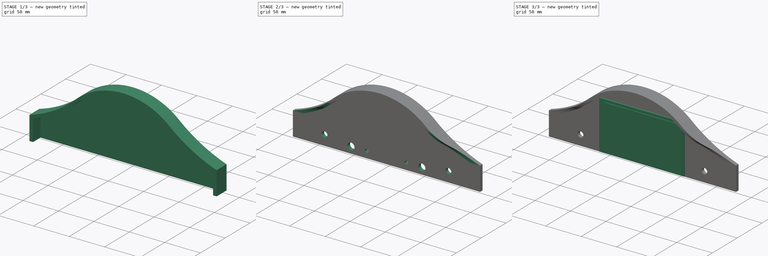
[diagram: build sequence overview — one tinted view per stage of 3, left to right]
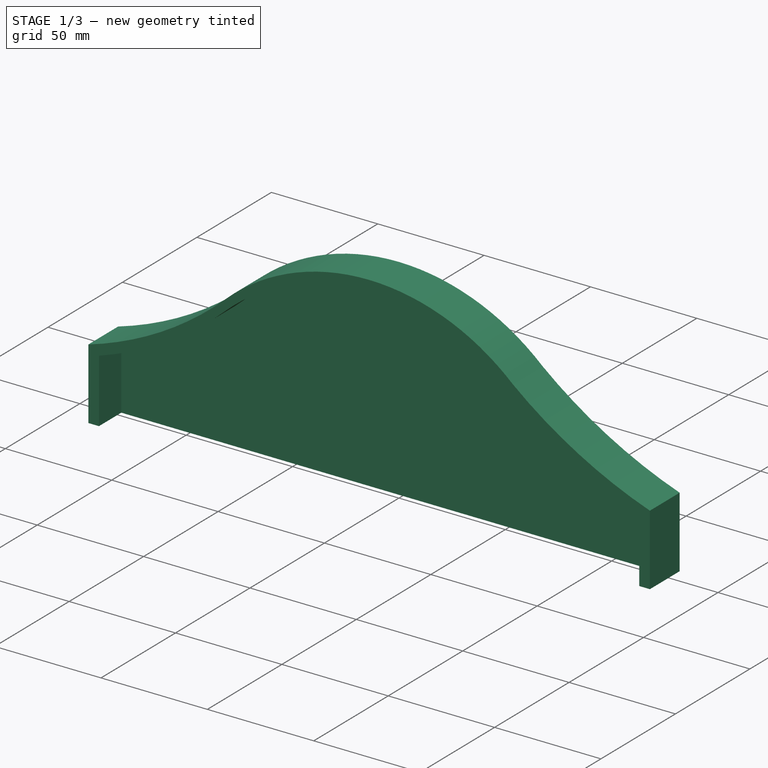
[diagram: stage 1 of 3 — iso view after this stage's code; geometry added in this stage tinted green]
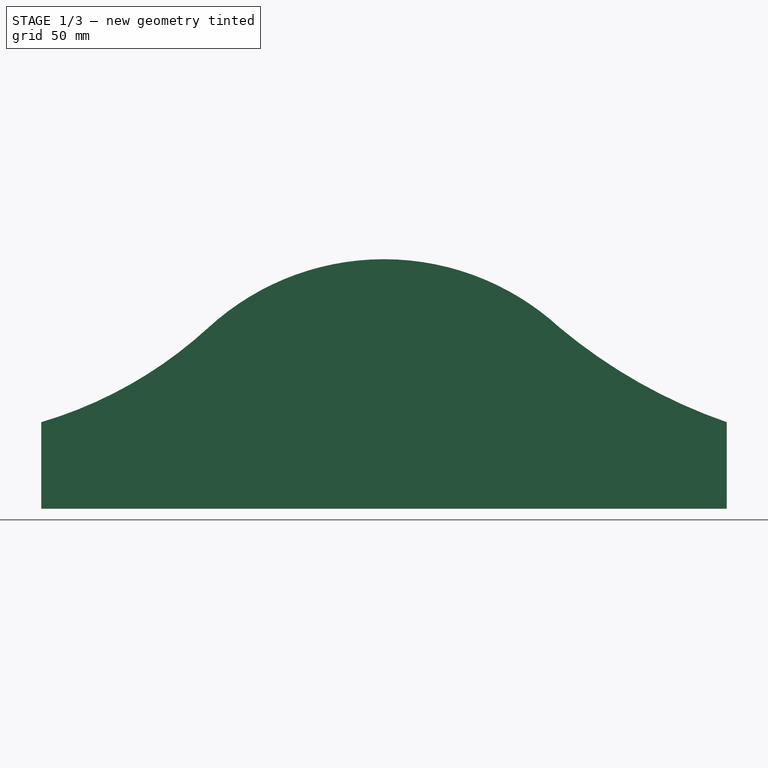
[diagram: stage 1 of 3 — front view after this stage's code; geometry added in this stage tinted green]
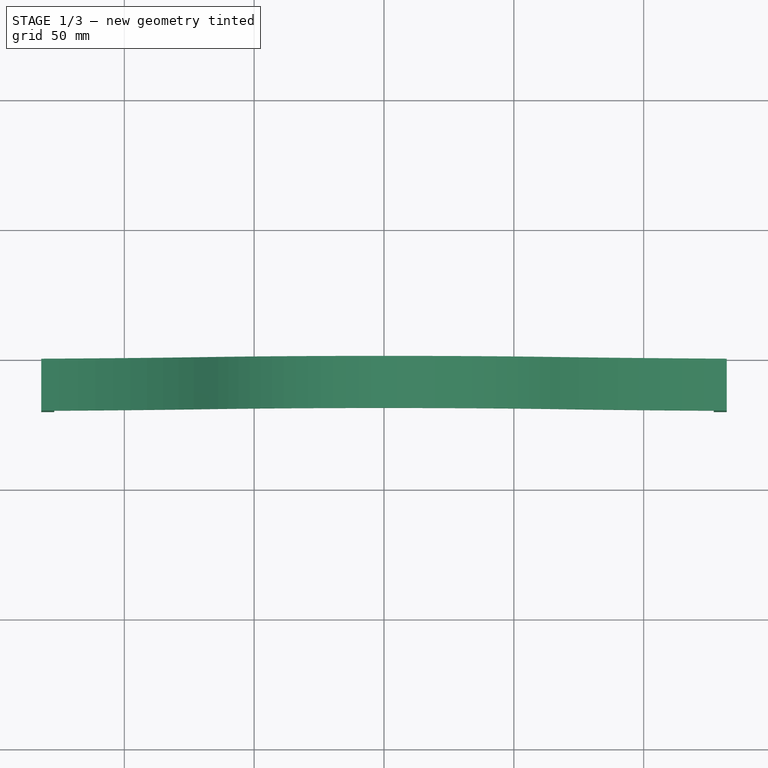
[diagram: stage 1 of 3 — top view after this stage's code; geometry added in this stage tinted green]
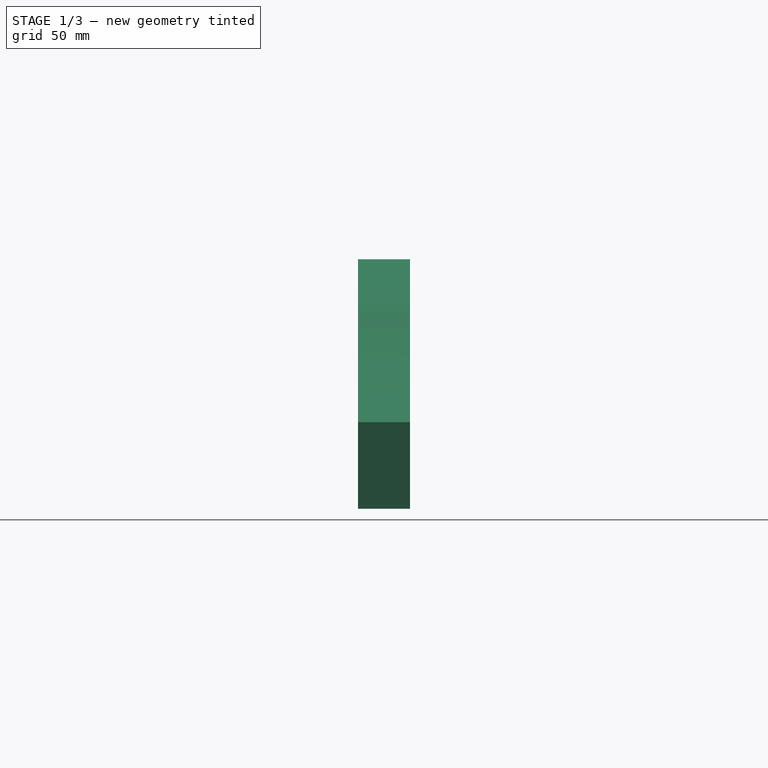
[diagram: stage 1 of 3 — right view after this stage's code; geometry added in this stage tinted green]
FCSTD DOCUMENT  (FreeCAD 0.20R29177 (Git))
Label: CSW Dashboard V1 Variant 1
License: All rights reserved
LicenseURL: http://en.wikipedia.org/wiki/All_rights_reserved
objects: Sketcher::SketchObject×9, PartDesign::Pad×3, PartDesign::Pocket×3, Image::ImagePlane×1, Spreadsheet::Sheet×1, PartDesign::Body×1
note: 22 computed .brp shape members not serialized (recipe doc carries the construction recipe); baked Part::Feature solids carry a one-line shape summary decoded from their .brp

FEATURE [Image::ImagePlane] ImagePlane  label="_CSW_reference"
  Placement = pos=(1.5,53,-30.7) rot=(-1,0,0;4.71239rad)
  XSize = 323.235
  YSize = 168.408
FEATURE [Sketcher::SketchObject] Sketch010  label="sk_mount_plate001"
  AttachmentOffset = pos=(0,14,0) rot=(0,0,1;0rad)
  FullyConstrained = false
  MapMode = 5
  Placement = pos=(0,-3e-15,14) rot=(1,0,0;1.5708rad)
  sketch-geometry (16):
    g0: Circle CenterX=-28 CenterY=0 CenterZ=0 NormalX=0 NormalY=0 NormalZ=1 AngleXU=0 Radius=2.425
    g1: Circle CenterX=28 CenterY=0 CenterZ=0 NormalX=0 NormalY=0 NormalZ=1 AngleXU=0 Radius=2.425
    g2: Circle CenterX=-50 CenterY=0 CenterZ=0 NormalX=0 NormalY=0 NormalZ=1 AngleXU=0 Radius=4.85
    g3: Circle CenterX=50 CenterY=0 CenterZ=0 NormalX=0 NormalY=0 NormalZ=1 AngleXU=0 Radius=4.85
    g4: LineSegment StartX=-50 StartY=0 StartZ=0 EndX=50 EndY=0 EndZ=0
    g5: ArcOfCircle CenterX=1.69e-14 CenterY=-69 CenterZ=0 NormalX=0 NormalY=0 NormalZ=1 AngleXU=0 Radius=100 StartAngle=1.21654 EndAngle=1.92505
    g6: ArcOfCircle CenterX=106.026 CenterY=217.668 CenterZ=0 NormalX=0 NormalY=0 NormalZ=1 AngleXU=0 Radius=205.647 StartAngle=4.35814 EndAngle=4.64413
    g7: GeomPoint X=0 Y=31 Z=0
    g8: LineSegment StartX=28 StartY=0 StartZ=0 EndX=28 EndY=27 EndZ=0
    g9: LineSegment StartX=50 StartY=0 StartZ=0 EndX=50 EndY=19.8 EndZ=0
    g10: ArcOfCircle CenterX=-106.026 CenterY=217.668 CenterZ=0 NormalX=0 NormalY=0 NormalZ=1 AngleXU=0 Radius=205.647 StartAngle=4.78065 EndAngle=5.06664
    g11: LineSegment StartX=-50 StartY=0 StartZ=0 EndX=-50 EndY=19.8 EndZ=0
    g12: LineSegment StartX=-92 StartY=12.5 StartZ=0 EndX=-92 EndY=0 EndZ=0
    g13: LineSegment StartX=92 StartY=12.5 StartZ=0 EndX=92 EndY=0 EndZ=0
    g14: Circle CenterX=-87.3506 CenterY=5.19938 CenterZ=0 NormalX=0 NormalY=0 NormalZ=1 AngleXU=0 Radius=4
    g15: Circle CenterX=87.3506 CenterY=5.19938 CenterZ=0 NormalX=0 NormalY=0 NormalZ=1 AngleXU=0 Radius=4
  constraints (42):
    c: DistanceX(g0,g1) = 56  'mount_holes_distance'
    c: Symmetric(g0,g1,g-2)
    c: Equal(g0,g1)
    c: Diameter(g0) = 4.85  'mount_holes_diameter'
    c: Equal(g2,g3)
    c: Diameter(g2) = 9.7  'motor_mount_holes_diameter'
    c: Symmetric(g2,g3,g-2)
    c: Coincident(g4,g2)
    c: Coincident(g4,g3)
    c: PointOnObject(g0,g4)
    c: PointOnObject(g-1,g4)
    c: Symmetric(g5,g5,g-2)
    c: Coincident(g6,g5)
    c: PointOnObject(g7,g5)
    c: PointOnObject(g7,g-2)
    c: DistanceY(g-1,g7) = 31
    c: Coincident(g8,g1)
    c: PointOnObject(g8,g5)
    c: Vertical(g8)
    c: Coincident(g9,g3)
    c: PointOnObject(g9,g6)
    c: Vertical(g9)
    c: DistanceY(g1,g8) = 27
    c: DistanceX(g2,g3) = 100
    c: DistanceY(g9,g9) = 19.8
    c: Coincident(g11,g2)
    c: PointOnObject(g11,g10)
    c: Vertical(g11)
    c: DistanceY(g11,g11) = 19.8
    c: Symmetric(g6,g10,g-2)
    c: Coincident(g12,g10)
    c: PointOnObject(g12,g-1)
    c: Vertical(g12)
    c: DistanceY(g12,g12) = 12.5
    c: DistanceX(g12,g-1) = 92
    c: Tangent(g10,g5) = 1.5708
    c: Coincident(g13,g6)
    c: PointOnObject(g13,g-1)
    c: Vertical(g13)
    c: Symmetric(g15,g14,g-2)
    c: Equal(g14,g15)
    c: Diameter(g14) = 8
FEATURE [Sketcher::SketchObject] Sketch
  ExternalGeometry = -> [Sketch010]
  FullyConstrained = false
  MapMode = 5
  Placement = pos=(0,0,0) rot=(1,0,0;1.5708rad)
  Support = -> [XZ_Plane]
  sketch-geometry (7):
    g0: ArcOfCircle CenterX=-178.514 CenterY=195.367 CenterZ=0 NormalX=0 NormalY=0 NormalZ=1 AngleXU=0 Radius=164.045 StartAngle=4.99989 EndAngle=5.45481
    g1: ArcOfCircle CenterX=199.44 CenterY=232.345 CenterZ=0 NormalX=0 NormalY=0 NormalZ=1 AngleXU=0 Radius=205.663 StartAngle=4.01657 EndAngle=4.37828
    g2: ArcOfCircle CenterX=7.2e-15 CenterY=0.809493 CenterZ=0 NormalX=0 NormalY=0 NormalZ=1 AngleXU=0 Radius=100 StartAngle=0.828376 EndAngle=2.31322
    g3: GeomPoint X=0 Y=100.809 Z=0
    g4: LineSegment StartX=131.998 StartY=38.055 StartZ=0 EndX=131.998 EndY=4.70202 EndZ=0
    g5: LineSegment StartX=131.998 StartY=4.70202 StartZ=0 EndX=-131.998 EndY=4.70202 EndZ=0
    g6: LineSegment StartX=-131.998 StartY=4.70202 StartZ=0 EndX=-131.998 EndY=38.055 EndZ=0
  constraints (14):
    c: Equal(g2,g-3)
    c: Symmetric(g2,g2,g-2)
    c: Symmetric(g0,g1,g-2)
    c: Symmetric(g0,g1,g-2)
    c: Tangent(g0,g2) = 1.5708
    c: PointOnObject(g3,g2)
    c: PointOnObject(g3,g-2)
    c: Coincident(g4,g1)
    c: Vertical(g4)
    c: Coincident(g5,g4)
    c: Horizontal(g5)
    c: Coincident(g6,g5)
    c: Coincident(g6,g0)
    c: Vertical(g6)
FEATURE [Sketcher::SketchObject] Sketch011  label="sk_back_plate"
  FullyConstrained = false
  MapMode = 5
  Placement = pos=(0,0,0) rot=(1,0,0;1.5708rad)
  Support = -> [XZ_Plane]
  expr: Constraints[16] = <<Spreadsheet>>.case_top_border_radius
  expr: Constraints[17] = <<Spreadsheet>>.case_middle_border_radius
  expr: Constraints[26] = <<Spreadsheet>>.case_top_radius
  expr: Constraints[30] = <<Spreadsheet>>.case_border_thickness
  expr: Constraints[31] = <<Spreadsheet>>.case_height
  expr: Constraints[32] = <<Spreadsheet>>.case_width_bottom
  expr: Constraints[33] = <<Spreadsheet>>.case_height_bottom
  expr: Constraints[34] = <<Spreadsheet>>.case_width_top
  sketch-geometry (15):
    g0: LineSegment StartX=73.255 StartY=35.51 StartZ=0 EndX=73.255 EndY=5 EndZ=0
    g1: LineSegment StartX=68.255 StartY=0 StartZ=0 EndX=-68.255 EndY=0 EndZ=0
    g2: LineSegment StartX=-73.255 StartY=5 StartZ=0 EndX=-73.255 EndY=35.51 EndZ=0
    g3: LineSegment StartX=-73.255 StartY=35.51 StartZ=0 EndX=-81.66 EndY=35.51 EndZ=0
    g4: LineSegment StartX=-86.66 StartY=40.51 StartZ=0 EndX=-86.66 EndY=79.3718 EndZ=0
    g5: LineSegment StartX=86.66 StartY=79.3718 StartZ=0 EndX=86.66 EndY=40.51 EndZ=0
    g6: LineSegment StartX=81.66 StartY=35.51 StartZ=0 EndX=73.255 EndY=35.51 EndZ=0
    g7: ArcOfCircle CenterX=-76.66 CenterY=79.3718 CenterZ=0 NormalX=0 NormalY=0 NormalZ=1 AngleXU=0 Radius=10 StartAngle=1.82068 EndAngle=3.14159
    g8: ArcOfCircle CenterX=76.66 CenterY=79.3718 CenterZ=0 NormalX=0 NormalY=0 NormalZ=1 AngleXU=0 Radius=10 StartAngle=-6.2e-15 EndAngle=1.32091
    g9: ArcOfCircle CenterX=-81.66 CenterY=40.51 CenterZ=0 NormalX=0 NormalY=0 NormalZ=1 AngleXU=0 Radius=5 StartAngle=3.14159 EndAngle=4.71239
    g10: ArcOfCircle CenterX=81.66 CenterY=40.51 CenterZ=0 NormalX=0 NormalY=0 NormalZ=1 AngleXU=0 Radius=5 StartAngle=4.71239 EndAngle=6.28319
    g11: ArcOfCircle CenterX=68.255 CenterY=5 CenterZ=0 NormalX=0 NormalY=0 NormalZ=1 AngleXU=0 Radius=5 StartAngle=4.71239 EndAngle=6.28319
    g12: ArcOfCircle CenterX=-68.255 CenterY=5 CenterZ=0 NormalX=0 NormalY=0 NormalZ=1 AngleXU=0 Radius=5 StartAngle=3.14159 EndAngle=4.71239
    g13: ArcOfCircle CenterX=8.8e-15 CenterY=-221 CenterZ=0 NormalX=0 NormalY=0 NormalZ=1 AngleXU=0 Radius=320 StartAngle=1.32091 EndAngle=1.82068
    g14: LineSegment StartX=0 StartY=94 StartZ=0 EndX=0 EndY=99 EndZ=0
  constraints (39):
    c: Horizontal(g1)
    c: Vertical(g2)
    c: Vertical(g0)
    c: Horizontal(g3)
    c: Vertical(g5)
    c: Horizontal(g6)
    c: Coincident(g2,g3)
    c: Coincident(g0,g6)
    c: Tangent(g4,g7) = 1.5708
    c: Tangent(g4,g9) = 1.5708
    c: Tangent(g3,g9) = 1.5708
    c: Tangent(g5,g10) = 1.5708
    c: Tangent(g6,g10) = 1.5708
    c: Symmetric(g2,g0,g-2)
    c: Symmetric(g4,g5,g-2)
    c: Equal(g9,g10)
    c: Radius(g7) = 10
    c: Radius(g9) = 5
    c: Tangent(g0,g11) = 1.5708
    c: Tangent(g1,g11) = 1.5708
    c: Tangent(g2,g12) = 1.5708
    c: Tangent(g1,g12) = 1.5708
    c: Equal(g12,g11)
    c: Equal(g11,g9)
    c: Tangent(g13,g7) = -1.5708
    c: Tangent(g13,g8) = -1.5708
    c: Radius(g13) = 320
    c: PointOnObject(g14,g13)
    c: Vertical(g14)
    c: PointOnObject(g14,g-2)
    c: DistanceY(g14,g14) = 5
    c: DistanceY(g1,g14) = 99
    c: DistanceX(g2,g0) = 146.51
    c: DistanceY(g1,g0) = 35.51
    c: DistanceX(g4,g5) = 173.32
    c: Symmetric(g7,g8,g-2)
    c: PointOnObject(g1,g-1)
    c: Vertical(g4)
    c: Equal(g8,g7)
FEATURE [Spreadsheet::Sheet] Spreadsheet
  cells = A2=display_width; B2(display_width)=119.3; A3=display_height; B3(display_height)=68.7; A4=display_depth; B4(display_depth)=3.6; A5=screen_width; B5(screen_width)=109.6; A6=screen_height; B6(screen_height)=61.6; A7=screen_offset_left; B7(screen_offset_left)=8; A10=case_top_border_radius; B10(case_top_border_radius)=10; A11=case_middle_border_radius; B11(case_middle_border_radius)=5; A12=case_border_thickness; B12(case_border_thickness)=5; A15=case_height; B15(case_height)=99; A16=case_width_top; B16(case_width_top)=173.32; A17=case_width_bottom; B17(case_width_bottom)=146.51; A18=case_height_bottom; B18(case_height_bottom)=35.51; A19=case_top_radius; B19(case_top_radius)=320; A22=ref_leds_gap; B22(ref_leds_gap)=2.19; A23=ref_leds_width; B23(ref_leds_width)=5
FEATURE [Sketcher::SketchObject] Sketch002  label="sk_display"
  FullyConstrained = true
  MapMode = 5
  Placement = pos=(0,-5,40) rot=(1,0,0;1.5708rad)
  expr: Constraints[8] = <<Spreadsheet>>.display_width
  expr: Constraints[9] = <<Spreadsheet>>.display_height
  sketch-geometry (4):
    g0: LineSegment StartX=-59.65 StartY=34.35 StartZ=0 EndX=59.65 EndY=34.35 EndZ=0
    g1: LineSegment StartX=59.65 StartY=34.35 StartZ=0 EndX=59.65 EndY=-34.35 EndZ=0
    g2: LineSegment StartX=59.65 StartY=-34.35 StartZ=0 EndX=-59.65 EndY=-34.35 EndZ=0
    g3: LineSegment StartX=-59.65 StartY=-34.35 StartZ=0 EndX=-59.65 EndY=34.35 EndZ=0
  constraints (11):
    c: Coincident(g0,g1)
    c: Coincident(g1,g2)
    c: Coincident(g2,g3)
    c: Coincident(g3,g0)
    c: Horizontal(g0)
    c: Horizontal(g2)
    c: Vertical(g1)
    c: Vertical(g3)
    c: DistanceX(g0,g0) = 119.3
    c: DistanceY(g1,g1) = 68.7
    c: Symmetric(g0,g1,g-1)
FEATURE [Sketcher::SketchObject] Sketch003  label="sk_screen"
  AttachmentOffset = pos=(0,0,3.5) rot=(0,0,1;0rad)
  ExternalGeometry = -> [Sketch002]
  FullyConstrained = true
  MapMode = 5
  Placement = pos=(0,-6.96,40) rot=(1,0,0;1.5708rad)
  expr: Constraints[10] = <<Spreadsheet>>.screen_offset_left
  expr: Constraints[7] = <<Spreadsheet>>.screen_width
  expr: Constraints[8] = <<Spreadsheet>>.screen_height
  sketch-geometry (4):
    g0: LineSegment StartX=-51.65 StartY=30.8 StartZ=0 EndX=57.95 EndY=30.8 EndZ=0
    g1: LineSegment StartX=57.95 StartY=30.8 StartZ=0 EndX=57.95 EndY=-30.8 EndZ=0
    g2: LineSegment StartX=57.95 StartY=-30.8 StartZ=0 EndX=-51.65 EndY=-30.8 EndZ=0
    g3: LineSegment StartX=-51.65 StartY=-30.8 StartZ=0 EndX=-51.65 EndY=30.8 EndZ=0
  constraints (11):
    c: Coincident(g0,g1)
    c: Coincident(g1,g2)
    c: Coincident(g2,g3)
    c: Coincident(g3,g0)
    c: Horizontal(g0)
    c: Horizontal(g2)
    c: Vertical(g1)
    c: DistanceX(g0,g0) = 109.6
    c: DistanceY(g1,g1) = 61.6
    c: Symmetric(g0,g2,g-1)
    c: DistanceX(g-3,g0) = 8
FEATURE [PartDesign::Pad] Pad
  Direction = (0,-1,-2e-16)
  Length = 20
  Length2 = 10
  Placement = pos=(0,0,0) rot=(1,0,0;1.5708rad)
  Profile = -> Sketch
  ReferenceAxis = -> Sketch [N_Axis]
  Refine = true
  Type = 0
FEATURE [Sketcher::SketchObject] Sketch012
  AttachmentOffset = pos=(0,0,20) rot=(0,0,1;0rad)
  ExternalGeometry = -> [Sketch]
  FullyConstrained = false
  MapMode = 5
  Placement = pos=(0,-20,-4.4e-15) rot=(1,0,0;1.5708rad)
  Support = -> [XZ_Plane]
  sketch-geometry (9):
    g0: LineSegment StartX=-126.998 StartY=-34.3119 StartZ=0 EndX=126.998 EndY=-34.3119 EndZ=0
    g1: LineSegment StartX=126.998 StartY=-34.3119 StartZ=0 EndX=126.998 EndY=34.6207 EndZ=0
    g2: LineSegment StartX=-126.998 StartY=-34.3119 StartZ=0 EndX=-126.998 EndY=34.6207 EndZ=0
    g3: ArcOfCircle CenterX=-178.514 CenterY=190.367 CenterZ=0 NormalX=0 NormalY=0 NormalZ=1 AngleXU=0 Radius=164.045 StartAngle=5.03183 EndAngle=5.45481
    g4: ArcOfCircle CenterX=2e-15 CenterY=-4.19051 CenterZ=0 NormalX=0 NormalY=0 NormalZ=1 AngleXU=0 Radius=100 StartAngle=0.828376 EndAngle=2.31322
    g5: ArcOfCircle CenterX=178.514 CenterY=190.367 CenterZ=0 NormalX=0 NormalY=0 NormalZ=1 AngleXU=0 Radius=164.045 StartAngle=3.96997 EndAngle=4.39295
    g6: LineSegment StartX=0 StartY=95.8095 StartZ=0 EndX=0 EndY=100.809 EndZ=0
    g7: LineSegment StartX=-67.6074 StartY=74.4929 StartZ=0 EndX=-67.6074 EndY=69.4929 EndZ=0
    g8: LineSegment StartX=-67.6074 StartY=74.4929 StartZ=0 EndX=-64.7341 EndY=72.0296 EndZ=0
  constraints (24):
    c: Horizontal(g0)
    c: Coincident(g1,g0)
    c: Vertical(g1)
    c: Coincident(g2,g0)
    c: Vertical(g2)
    c: Coincident(g3,g2)
    c: Coincident(g5,g1)
    c: Equal(g4,g-3)
    c: Tangent(g4,g3) = 1.5708
    c: Tangent(g5,g4) = 1.5708
    c: Symmetric(g3,g4,g-2)
    c: DistanceX(g-6,g2) = 5
    c: PointOnObject(g6,g4)
    c: PointOnObject(g6,g-3)
    c: Vertical(g6)
    c: PointOnObject(g6,g-2)
    c: DistanceY(g6,g6) = 5
    c: Symmetric(g2,g1,g-2)
    c: Equal(g3,g-5)
    c: Coincident(g7,g-5)
    c: Coincident(g7,g3)
    c: Vertical(g7)
    c: Coincident(g8,g7)
    c: PointOnObject(g8,g4)
FEATURE [PartDesign::Pocket] Pocket
  BaseFeature = -> Pad
  Direction = (0,1,2e-16)
  Length = 15
  Length2 = 5
  Placement = pos=(0,0,0) rot=(1,0,0;1.5708rad)
  Profile = -> Sketch012
  ReferenceAxis = -> Sketch012 [N_Axis]
  Refine = true
  Type = 0
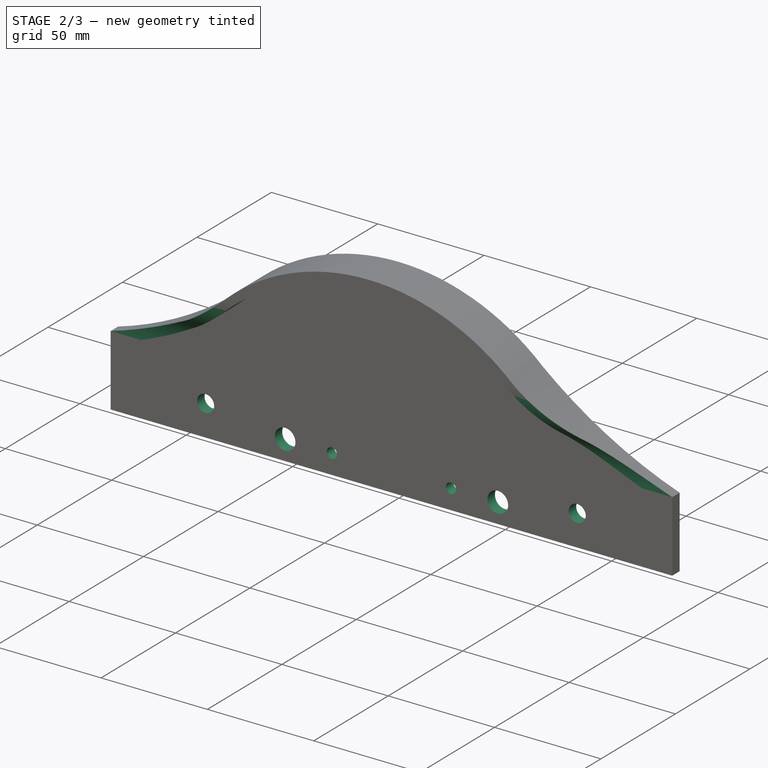
[diagram: stage 2 of 3 — iso view after this stage's code; geometry added in this stage tinted green]
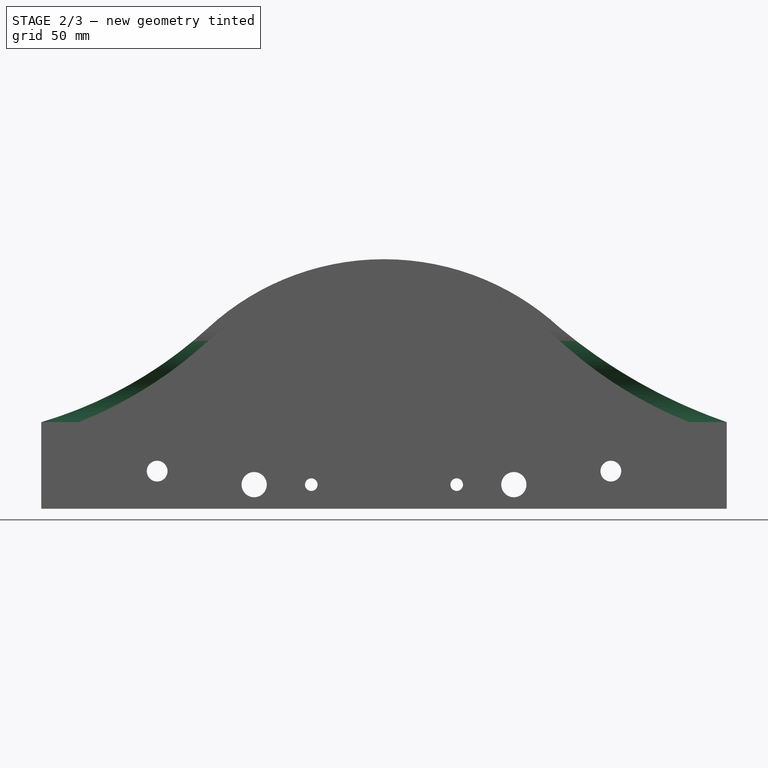
[diagram: stage 2 of 3 — front view after this stage's code; geometry added in this stage tinted green]
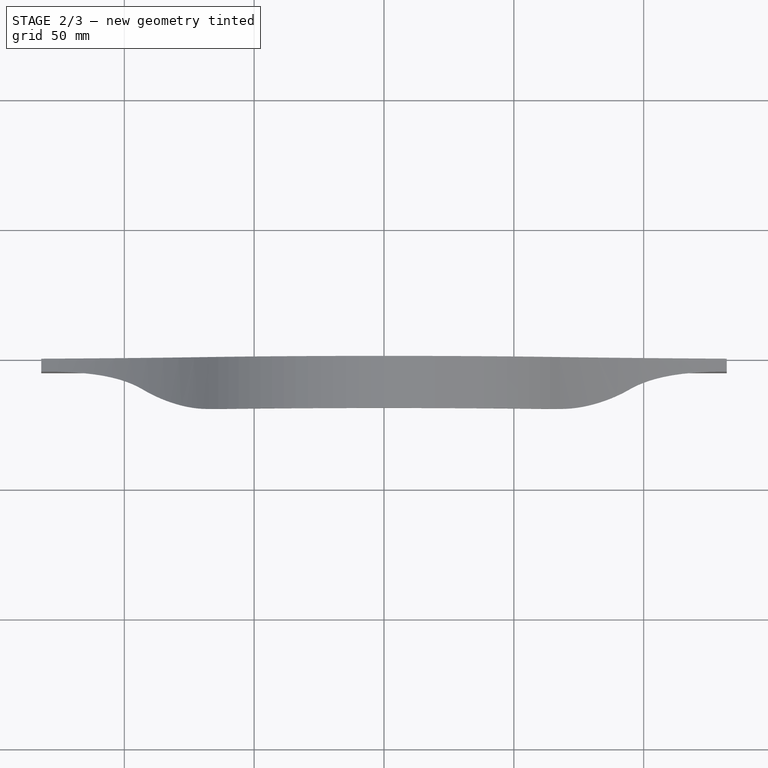
[diagram: stage 2 of 3 — top view after this stage's code; geometry added in this stage tinted green]
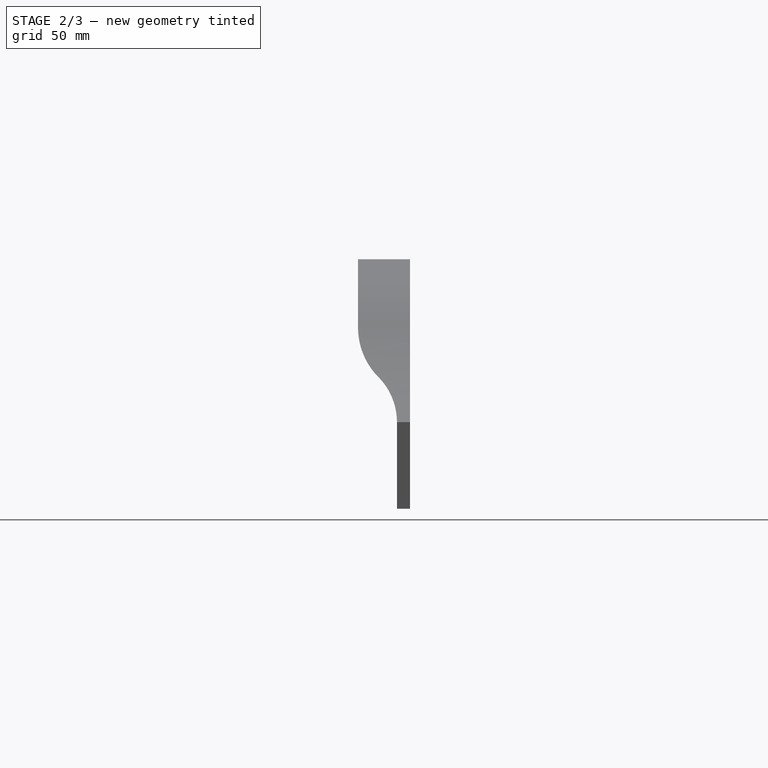
[diagram: stage 2 of 3 — right view after this stage's code; geometry added in this stage tinted green]
FEATURE [Sketcher::SketchObject] Sketch013
  AttachmentOffset = pos=(0,0,132) rot=(0,0,1;0rad)
  ExternalGeometry = -> [Sketch,Pocket]
  FullyConstrained = false
  MapMode = 5
  Placement = pos=(132,-2.93e-14,2.93e-14) rot=(0.57735,0.57735,0.57735;2.0944rad)
  Support = -> [YZ_Plane]
  sketch-geometry (7):
    g0: LineSegment StartX=-20 StartY=4.70202 StartZ=0 EndX=-5 EndY=4.70202 EndZ=0
    g1: LineSegment StartX=-5 StartY=4.70202 StartZ=0 EndX=-5 EndY=38.055 EndZ=0
    g2: LineSegment StartX=-5 StartY=4.70202 StartZ=0 EndX=2.75e-14 EndY=4.70202 EndZ=0
    g3: ArcOfCircle CenterX=-29.6826 CenterY=38.055 CenterZ=0 NormalX=0 NormalY=0 NormalZ=1 AngleXU=0 Radius=24.6826 StartAngle=0 EndAngle=0.800832
    g4: LineSegment StartX=-20 StartY=38.055 StartZ=0 EndX=1.07e-14 EndY=38.055 EndZ=0
    g5: ArcOfCircle CenterX=7.10812 CenterY=74.4929 CenterZ=0 NormalX=0 NormalY=0 NormalZ=1 AngleXU=0 Radius=27.1081 StartAngle=3.14159 EndAngle=3.90373
    g6: LineSegment StartX=-20 StartY=4.70202 StartZ=0 EndX=-20 EndY=74.4929 EndZ=0
  constraints (15):
    c: Coincident(g0,g1)
    c: Horizontal(g0)
    c: Vertical(g1)
    c: Coincident(g0,g-5)
    c: Coincident(g2,g0)
    c: Coincident(g2,g-4)
    c: DistanceX(g2,g2) = 5
    c: Coincident(g4,g-6)
    c: Coincident(g4,g-4)
    c: PointOnObject(g1,g4)
    c: Tangent(g5,g-7) = -1.5708
    c: Tangent(g3,g1) = -1.5708
    c: Coincident(g5,g3)
    c: Coincident(g6,g0)
    c: Coincident(g6,g5)
FEATURE [PartDesign::Pocket] Pocket001
  BaseFeature = -> Pocket
  Direction = (-1,2e-16,-3e-16)
  Length = 5
  Length2 = 5
  Placement = pos=(0,0,0) rot=(1,0,0;1.5708rad)
  Profile = -> Sketch013
  ReferenceAxis = -> Sketch013 [N_Axis]
  Refine = true
  Type = 1
FEATURE [Sketcher::SketchObject] Sketch014
  AttachmentOffset = pos=(0,0,5) rot=(0,0,1;0rad)
  ExternalGeometry = -> [Sketch010]
  FullyConstrained = true
  MapMode = 5
  Placement = pos=(0,-5,-1.1e-15) rot=(1,0,0;1.5708rad)
  Support = -> [XZ_Plane]
  sketch-geometry (6):
    g0: Circle CenterX=-50 CenterY=14 CenterZ=0 NormalX=0 NormalY=0 NormalZ=1 AngleXU=0 Radius=4.85
    g1: Circle CenterX=-28 CenterY=14 CenterZ=0 NormalX=0 NormalY=0 NormalZ=1 AngleXU=0 Radius=2.425
    g2: Circle CenterX=28 CenterY=14 CenterZ=0 NormalX=0 NormalY=0 NormalZ=1 AngleXU=0 Radius=2.425
    g3: Circle CenterX=50 CenterY=14 CenterZ=0 NormalX=0 NormalY=0 NormalZ=1 AngleXU=0 Radius=4.85
    g4: Circle CenterX=-87.3506 CenterY=19.1994 CenterZ=0 NormalX=0 NormalY=0 NormalZ=1 AngleXU=0 Radius=4
    g5: Circle CenterX=87.3506 CenterY=19.1994 CenterZ=0 NormalX=0 NormalY=0 NormalZ=1 AngleXU=0 Radius=4
  constraints (12):
    c: Coincident(g0,g-3)
    c: Coincident(g1,g-4)
    c: Coincident(g2,g-5)
    c: Coincident(g3,g-6)
    c: Equal(g-5,g2)
    c: Equal(g2,g1)
    c: Equal(g0,g3)
    c: Equal(g3,g-3)
    c: Coincident(g4,g-7)
    c: Coincident(g5,g-8)
    c: Equal(g4,g5)
    c: Equal(g5,g-7)
FEATURE [PartDesign::Pocket] Pocket002
  BaseFeature = -> Pocket001
  Direction = (0,1,2e-16)
  Length = 5
  Length2 = 5
  Placement = pos=(0,0,0) rot=(1,0,0;1.5708rad)
  Profile = -> Sketch014
  ReferenceAxis = -> Sketch014 [N_Axis]
  Refine = true
  Type = 1
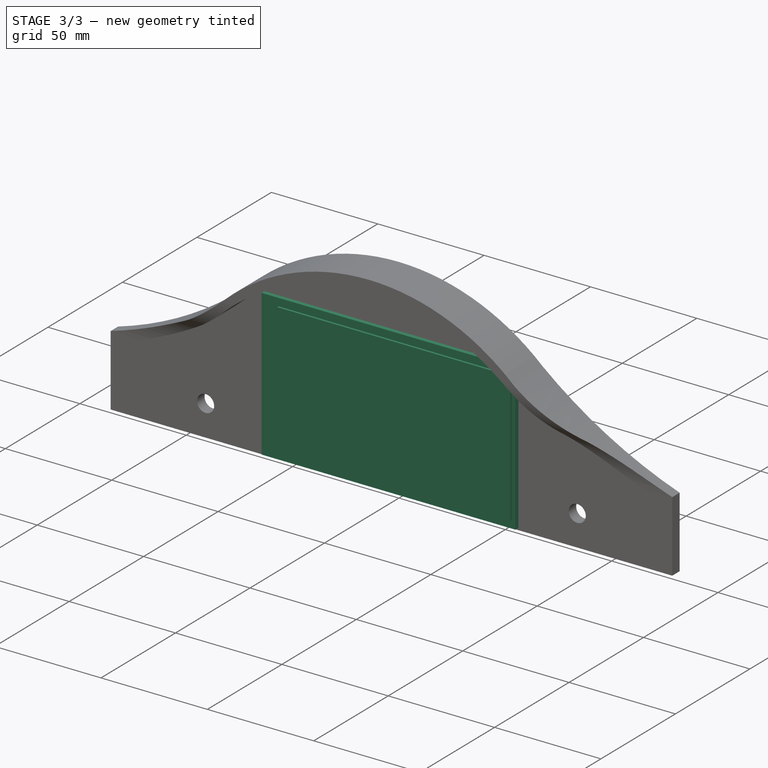
[diagram: stage 3 of 3 — iso view after this stage's code; geometry added in this stage tinted green]
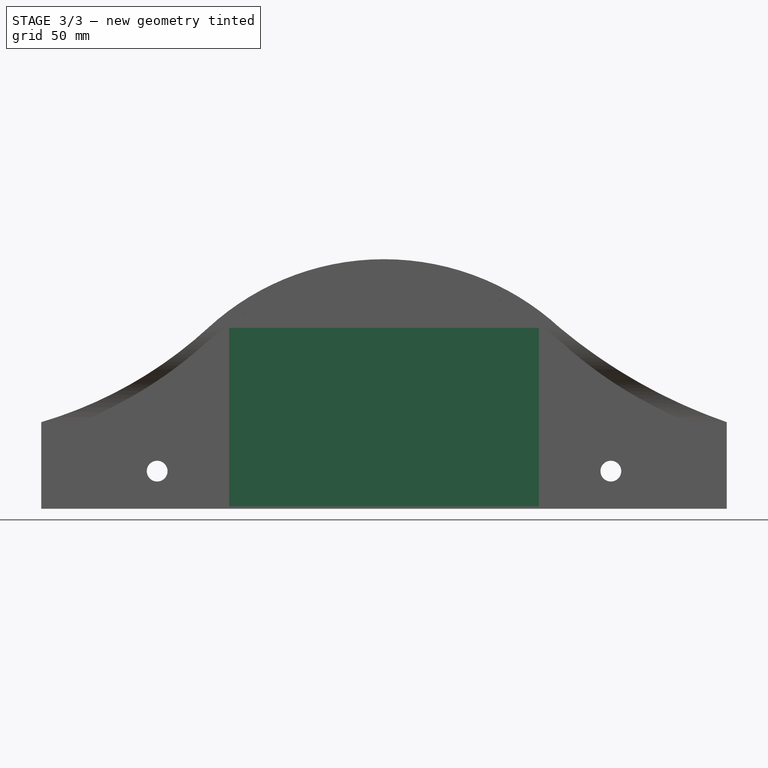
[diagram: stage 3 of 3 — front view after this stage's code; geometry added in this stage tinted green]
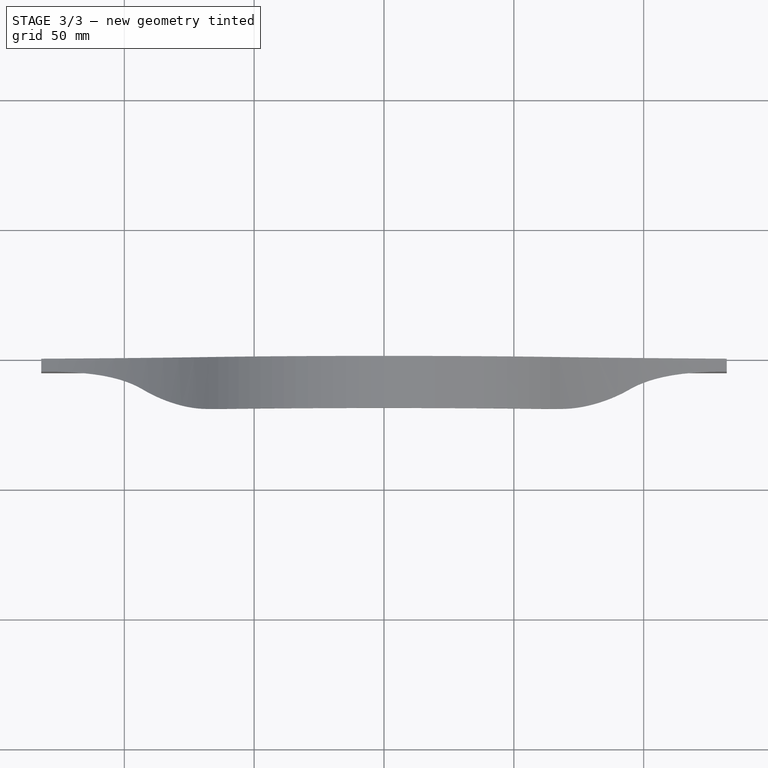
[diagram: stage 3 of 3 — top view after this stage's code; geometry added in this stage tinted green]
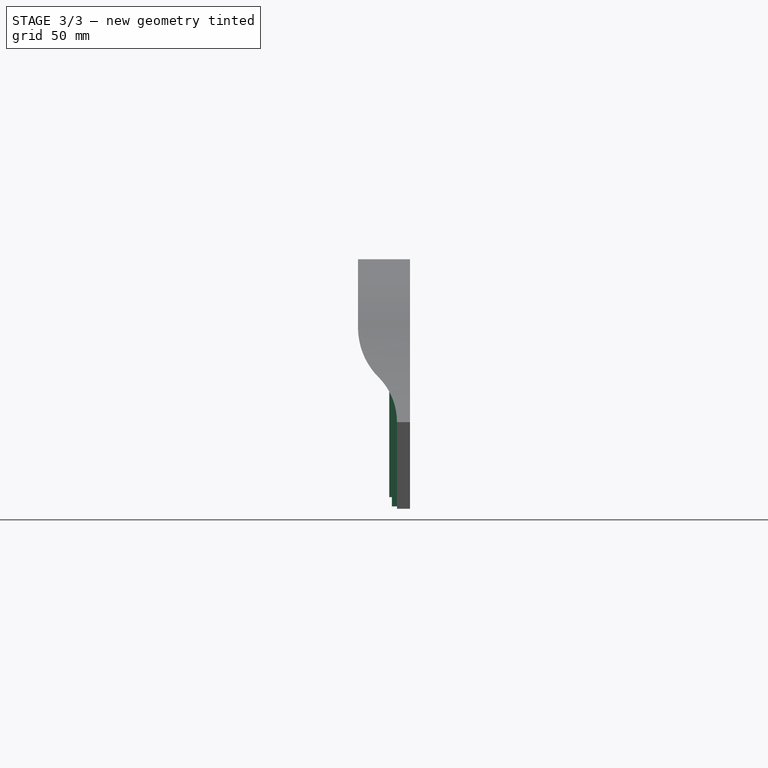
[diagram: stage 3 of 3 — right view after this stage's code; geometry added in this stage tinted green]
FEATURE [Sketcher::SketchObject] Sketch015
  FullyConstrained = true
  MapMode = 5
  Placement = pos=(0,0,0) rot=(1,0,0;1.5708rad)
  Support = -> [XZ_Plane]
FEATURE [PartDesign::Pad] Pad001
  BaseFeature = -> Pocket002
  Direction = (0,-1,0)
  Length = 1.96
  Length2 = 10
  Placement = pos=(0,0,0) rot=(1,0,0;1.5708rad)
  Profile = -> Sketch002
  ReferenceAxis = -> Sketch002 [N_Axis]
  Refine = true
  Type = 0
FEATURE [PartDesign::Pad] Pad002
  BaseFeature = -> Pad001
  Direction = (0,-1,0)
  Length = 1
  Length2 = 10
  Placement = pos=(0,0,0) rot=(1,0,0;1.5708rad)
  Profile = -> Sketch003
  ReferenceAxis = -> Sketch003 [N_Axis]
  Refine = true
  Type = 0
FEATURE [PartDesign::Body] Body
  Group = -> [Sketch,Sketch010,Sketch011,Sketch002,Sketch003,Pad,Sketch012,Pocket,Sketch013,Pocket001,Sketch014,Pocket002,Sketch015,Pad001,Pad002]
  Origin = -> Origin
  Tip = -> Pad002
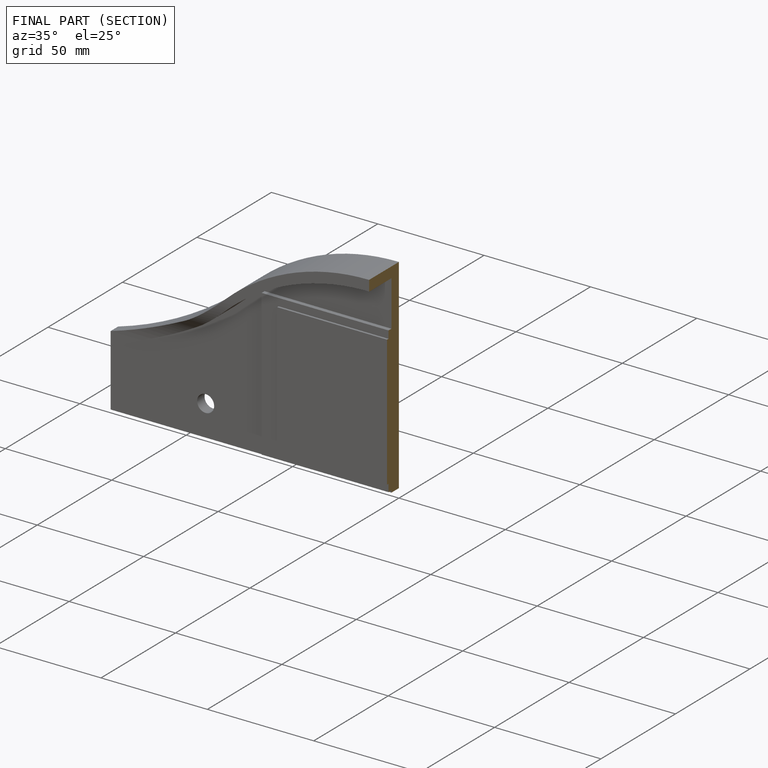
[diagram: finished part — half-section view (interior)]
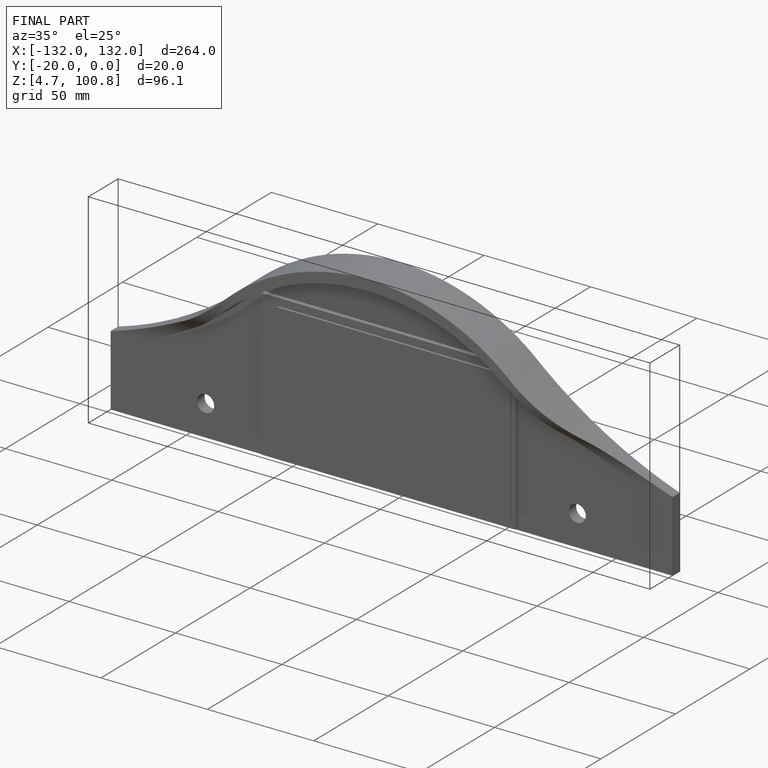
[diagram: finished part — iso view with bounding-box wireframe]
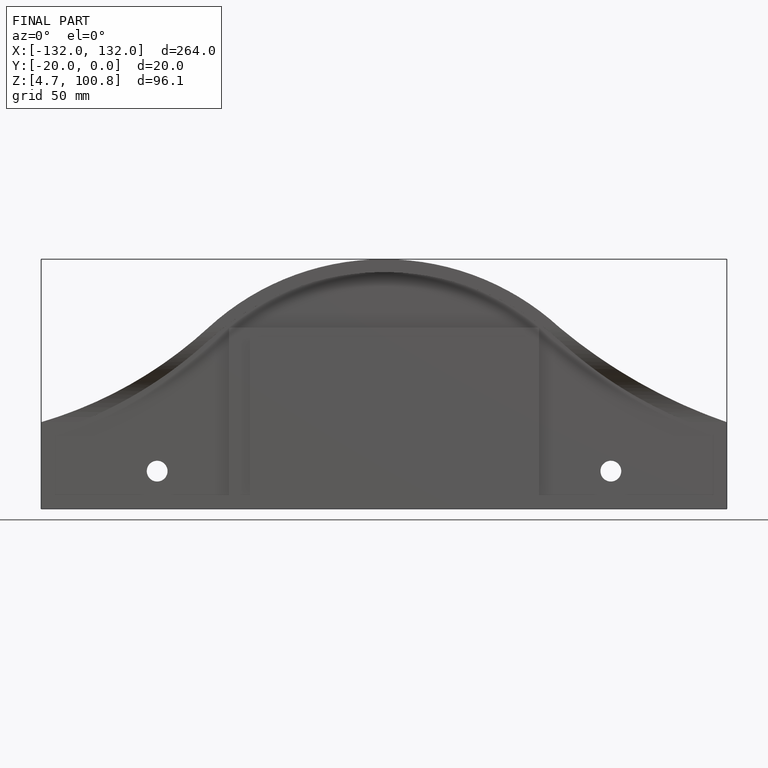
[diagram: finished part — front view with bounding-box wireframe]
